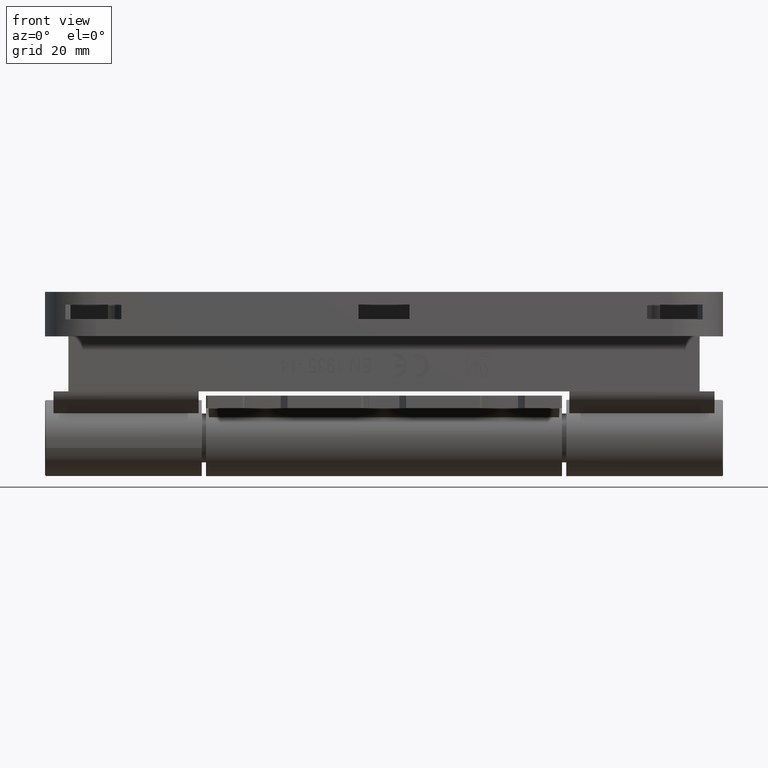
[diagram: clean part render]
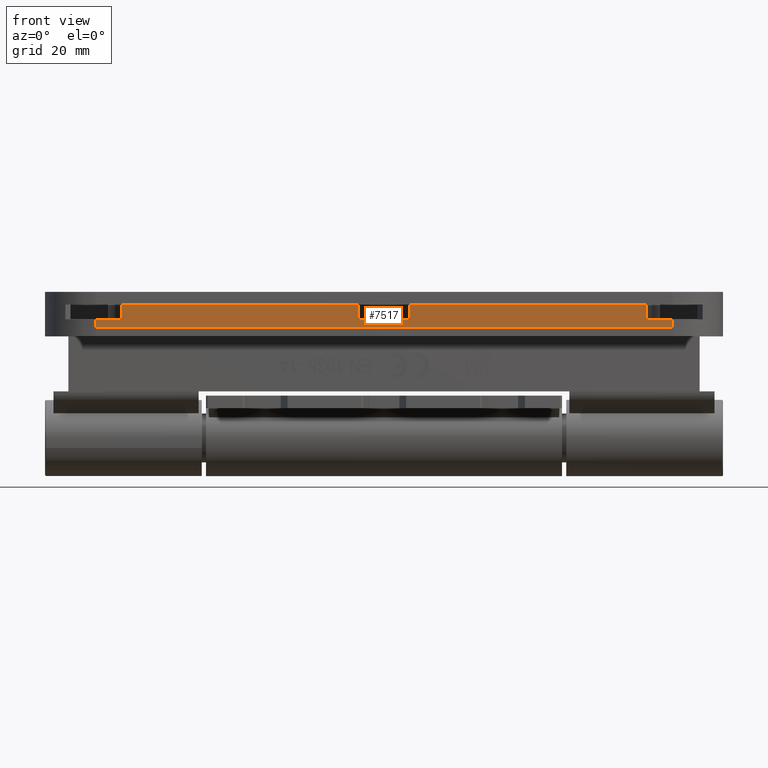
[diagram: same view with one face highlighted and labeled with its STEP entity id]
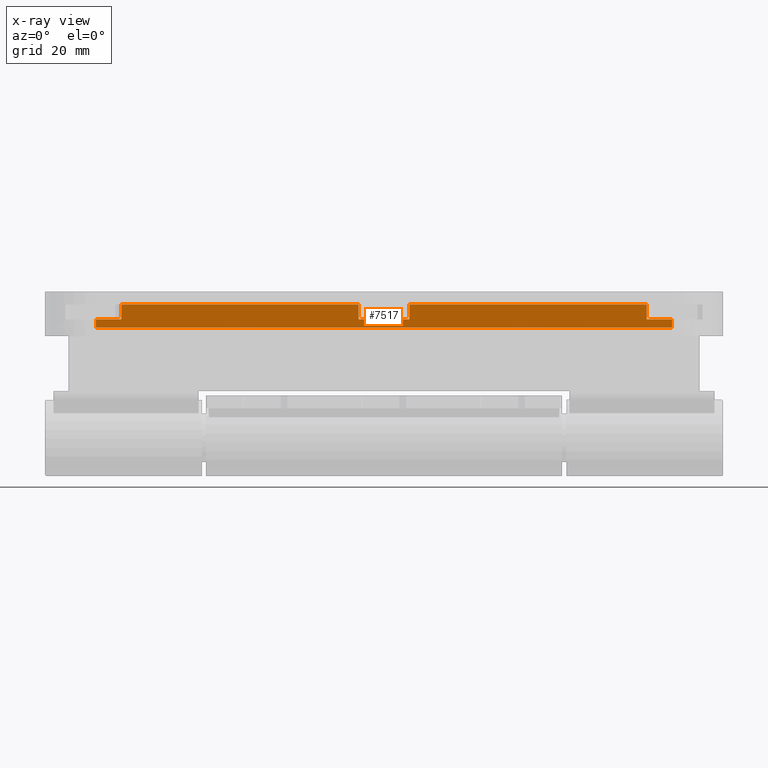
[diagram: x-ray of the same camera — body ghosted, the highlighted face saturated]
A machine part, front view. The second image highlights one B-rep face of the part: STEP entity #7517.
The next image is the same camera in x-ray: the body ghosted, the highlighted face saturated — about 0% of this face is hidden behind the body in this view.
In plain terms, the highlighted planar face has unit normal (0, 1, -0).
Its self-contained STEP definition (entity closure, byte-faithful):
#33 = LINE ( 'NONE', #4726, #857 ) ;
#62 = DIRECTION ( 'NONE',  ( -2.812673165243434616E-16, -7.216449660063531318E-16, -1.000000000000000000 ) ) ;
#115 = VERTEX_POINT ( 'NONE', #4827 ) ;
#210 = DIRECTION ( 'NONE',  ( 1.652735096618697915E-16, -1.000000000000000000, -7.216449660063505680E-16 ) ) ;
#746 = ORIENTED_EDGE ( 'NONE', *, *, #19835, .T. ) ;
#857 = VECTOR ( 'NONE', #7959, 1000.000000000000000 ) ;
#1280 = CARTESIAN_POINT ( 'NONE',  ( -8.000000000000000000, 6.000000000000008882, 5.499999999999973355 ) ) ;
#1459 = DIRECTION ( 'NONE',  ( 3.821139441589696429E-16, -1.000000000000000000, -7.216449660063506666E-16 ) ) ;
#1620 = ORIENTED_EDGE ( 'NONE', *, *, #20939, .F. ) ;
#1889 = EDGE_CURVE ( 'NONE', #7943, #6257, #18616, .T. ) ;
#1905 = CARTESIAN_POINT ( 'NONE',  ( -8.000000000000000000, -6.000000000000000000, 1.999999999999960032 ) ) ;
#2579 = PLANE ( 'NONE',  #17739 ) ;
#2805 = ORIENTED_EDGE ( 'NONE', *, *, #12534, .F. ) ;
#2823 = EDGE_LOOP ( 'NONE', ( #17187, #2805, #19021, #7021, #1620, #746, #16237, #15344, #18123, #6145, #12026, #16518 ) ) ;
#2886 = DIRECTION ( 'NONE',  ( 1.962507145900269695E-16, -1.000000000000000000, -7.216449660063506666E-16 ) ) ;
#3160 = EDGE_CURVE ( 'NONE', #115, #19547, #13173, .T. ) ;
#3196 = VERTEX_POINT ( 'NONE', #13283 ) ;
#3381 = CARTESIAN_POINT ( 'NONE',  ( -7.999999999999992895, -68.00000000000000000, -7.979727989493312634E-14 ) ) ;
#3561 = LINE ( 'NONE', #6498, #19447 ) ;
#3846 = VECTOR ( 'NONE', #20011, 1000.000000000000000 ) ;
#3998 = EDGE_CURVE ( 'NONE', #6257, #21243, #17994, .T. ) ;
#4310 = CARTESIAN_POINT ( 'NONE',  ( -8.000000000000000000, 61.99999999999992184, 5.499999999999994671 ) ) ;
#4330 = VERTEX_POINT ( 'NONE', #11907 ) ;
#4350 = VECTOR ( 'NONE', #4898, 1000.000000000000000 ) ;
#4726 = CARTESIAN_POINT ( 'NONE',  ( -7.999999999999992895, -68.00000000000000000, 1.999999999999911626 ) ) ;
#4816 = EDGE_CURVE ( 'NONE', #5413, #19346, #20822, .T. ) ;
#4827 = CARTESIAN_POINT ( 'NONE',  ( -8.000000000000000000, 61.99999999999992184, 5.499999999999994671 ) ) ;
#4898 = DIRECTION ( 'NONE',  ( 1.652735096618697915E-16, -1.000000000000000000, -7.216449660063505680E-16 ) ) ;
#5413 = VERTEX_POINT ( 'NONE', #12967 ) ;
#5498 = CARTESIAN_POINT ( 'NONE',  ( -7.999999999999992895, -68.00000000000000000, -7.979727989493312634E-14 ) ) ;
#6131 = LINE ( 'NONE', #14354, #8160 ) ;
#6145 = ORIENTED_EDGE ( 'NONE', *, *, #3160, .T. ) ;
#6257 = VERTEX_POINT ( 'NONE', #13366 ) ;
#6498 = CARTESIAN_POINT ( 'NONE',  ( -7.999999999999992895, -68.00000000000000000, 1.999999999999911626 ) ) ;
#7021 = ORIENTED_EDGE ( 'NONE', *, *, #4816, .F. ) ;
#7308 = LINE ( 'NONE', #10238, #15389 ) ;
#7478 = EDGE_CURVE ( 'NONE', #21278, #3196, #11230, .T. ) ;
#7517 = ADVANCED_FACE ( 'NONE', ( #15985 ), #2579, .F. ) ;
#7890 = CARTESIAN_POINT ( 'NONE',  ( -7.999999999999992895, -68.00000000000000000, 1.999999999999911626 ) ) ;
#7939 = VERTEX_POINT ( 'NONE', #8574 ) ;
#7943 = VERTEX_POINT ( 'NONE', #13540 ) ;
#7959 = DIRECTION ( 'NONE',  ( 1.652735096618697915E-16, -1.000000000000000000, -7.216449660063505680E-16 ) ) ;
#8160 = VECTOR ( 'NONE', #11209, 1000.000000000000000 ) ;
#8574 = CARTESIAN_POINT ( 'NONE',  ( -8.000000000000000000, -5.999999999999991118, 5.499999999999911182 ) ) ;
#9018 = DIRECTION ( 'NONE',  ( -2.812673165243434616E-16, -7.216449660063531318E-16, -1.000000000000000000 ) ) ;
#9240 = CARTESIAN_POINT ( 'NONE',  ( -7.999999999999986677, -62.00000000000006395, 5.499999999999904077 ) ) ;
#9479 = LINE ( 'NONE', #4310, #10013 ) ;
#9664 = EDGE_CURVE ( 'NONE', #7943, #19547, #3561, .T. ) ;
#9685 = CARTESIAN_POINT ( 'NONE',  ( -7.999999999999986677, -62.00000000000006395, 5.499999999999904077 ) ) ;
#10013 = VECTOR ( 'NONE', #2886, 1000.000000000000000 ) ;
#10238 = CARTESIAN_POINT ( 'NONE',  ( -7.999999999999992895, -68.00000000000000000, 1.999999999999911626 ) ) ;
#11001 = LINE ( 'NONE', #9685, #19528 ) ;
#11209 = DIRECTION ( 'NONE',  ( -2.812673165243434616E-16, -7.216449660063531318E-16, -1.000000000000000000 ) ) ;
#11230 = LINE ( 'NONE', #1280, #16691 ) ;
#11907 = CARTESIAN_POINT ( 'NONE',  ( -7.999999999999992895, -68.00000000000000000, 1.999999999999911626 ) ) ;
#12026 = ORIENTED_EDGE ( 'NONE', *, *, #9664, .F. ) ;
#12534 = EDGE_CURVE ( 'NONE', #4330, #21243, #7308, .T. ) ;
#12967 = CARTESIAN_POINT ( 'NONE',  ( -7.999999999999986677, -62.00000000000006395, 5.499999999999904077 ) ) ;
#12991 = VECTOR ( 'NONE', #9018, 1000.000000000000000 ) ;
#13100 = EDGE_CURVE ( 'NONE', #115, #21278, #9479, .T. ) ;
#13173 = LINE ( 'NONE', #20197, #14306 ) ;
#13283 = CARTESIAN_POINT ( 'NONE',  ( -8.000000000000000000, 6.000000000000000000, 1.999999999999998224 ) ) ;
#13366 = CARTESIAN_POINT ( 'NONE',  ( -7.999999999999992895, 68.00000000000000000, 4.510281037539698445E-14 ) ) ;
#13540 = CARTESIAN_POINT ( 'NONE',  ( -7.999999999999992895, 68.00000000000000000, 2.000000000000022649 ) ) ;
#13747 = CARTESIAN_POINT ( 'NONE',  ( -7.999999999999992895, 68.00000000000000000, 2.000000000000022649 ) ) ;
#14306 = VECTOR ( 'NONE', #62, 1000.000000000000000 ) ;
#14354 = CARTESIAN_POINT ( 'NONE',  ( -8.000000000000000000, -5.999999999999991118, 5.499999999999911182 ) ) ;
#14566 = EDGE_CURVE ( 'NONE', #3196, #16854, #15042, .T. ) ;
#15042 = LINE ( 'NONE', #18515, #3846 ) ;
#15329 = CARTESIAN_POINT ( 'NONE',  ( -8.000000000000000000, 6.000000000000008882, 5.499999999999973355 ) ) ;
#15344 = ORIENTED_EDGE ( 'NONE', *, *, #7478, .F. ) ;
#15389 = VECTOR ( 'NONE', #18453, 1000.000000000000000 ) ;
#15985 = FACE_OUTER_BOUND ( 'NONE', #2823, .T. ) ;
#16237 = ORIENTED_EDGE ( 'NONE', *, *, #14566, .F. ) ;
#16518 = ORIENTED_EDGE ( 'NONE', *, *, #1889, .T. ) ;
#16691 = VECTOR ( 'NONE', #21186, 1000.000000000000000 ) ;
#16854 = VERTEX_POINT ( 'NONE', #1905 ) ;
#17187 = ORIENTED_EDGE ( 'NONE', *, *, #3998, .T. ) ;
#17213 = DIRECTION ( 'NONE',  ( -2.812673165243434616E-16, -7.216449660063531318E-16, -1.000000000000000000 ) ) ;
#17739 = AXIS2_PLACEMENT_3D ( 'NONE', #7890, #21080, #19134 ) ;
#17994 = LINE ( 'NONE', #3381, #4350 ) ;
#18123 = ORIENTED_EDGE ( 'NONE', *, *, #13100, .F. ) ;
#18453 = DIRECTION ( 'NONE',  ( -2.812673165243434616E-16, -7.216449660063531318E-16, -1.000000000000000000 ) ) ;
#18515 = CARTESIAN_POINT ( 'NONE',  ( -7.999999999999992895, -68.00000000000000000, 1.999999999999911626 ) ) ;
#18544 = EDGE_CURVE ( 'NONE', #19346, #4330, #33, .T. ) ;
#18611 = CARTESIAN_POINT ( 'NONE',  ( -7.999999999999986677, -62.00000000000001421, 1.999999999999953149 ) ) ;
#18616 = LINE ( 'NONE', #13747, #21055 ) ;
#19021 = ORIENTED_EDGE ( 'NONE', *, *, #18544, .F. ) ;
#19134 = DIRECTION ( 'NONE',  ( -2.812673165243434616E-16, -7.216449660063531318E-16, -1.000000000000000000 ) ) ;
#19346 = VERTEX_POINT ( 'NONE', #18611 ) ;
#19447 = VECTOR ( 'NONE', #210, 1000.000000000000000 ) ;
#19458 = CARTESIAN_POINT ( 'NONE',  ( -8.000000000000000000, 61.99999999999997158, 2.000000000000043521 ) ) ;
#19528 = VECTOR ( 'NONE', #1459, 1000.000000000000000 ) ;
#19547 = VERTEX_POINT ( 'NONE', #19458 ) ;
#19835 = EDGE_CURVE ( 'NONE', #7939, #16854, #6131, .T. ) ;
#20011 = DIRECTION ( 'NONE',  ( 1.652735096618697915E-16, -1.000000000000000000, -7.216449660063505680E-16 ) ) ;
#20197 = CARTESIAN_POINT ( 'NONE',  ( -8.000000000000000000, 61.99999999999992184, 5.499999999999994671 ) ) ;
#20822 = LINE ( 'NONE', #9240, #12991 ) ;
#20939 = EDGE_CURVE ( 'NONE', #7939, #5413, #11001, .T. ) ;
#21055 = VECTOR ( 'NONE', #17213, 1000.000000000000000 ) ;
#21080 = DIRECTION ( 'NONE',  ( 1.000000000000000000, -1.652735096618707776E-16, -2.812673165243433630E-16 ) ) ;
#21186 = DIRECTION ( 'NONE',  ( -2.812673165243434616E-16, -7.216449660063531318E-16, -1.000000000000000000 ) ) ;
#21243 = VERTEX_POINT ( 'NONE', #5498 ) ;
#21278 = VERTEX_POINT ( 'NONE', #15329 ) ;